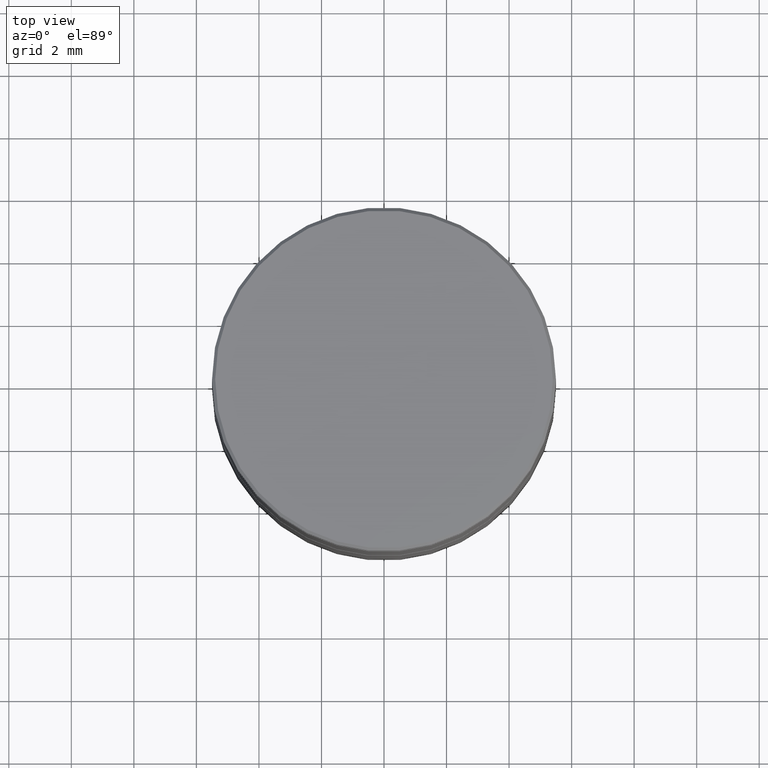
[diagram: clean part render]
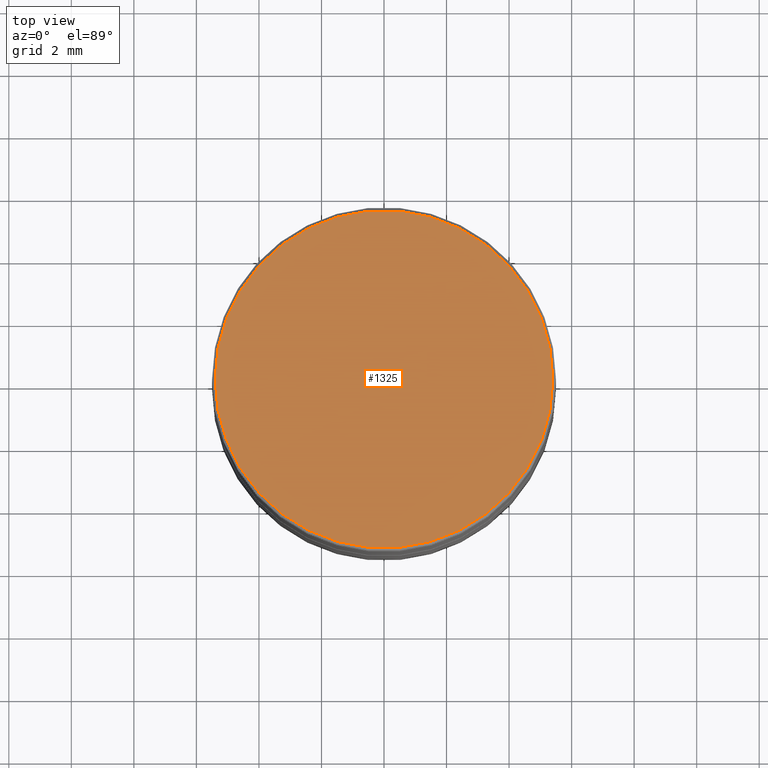
[diagram: same view with one face highlighted and labeled with its STEP entity id]
A machine part, top view. The second image highlights one B-rep face of the part: STEP entity #1325.
In plain terms, the highlighted planar face has unit normal (0, -0, 1).
Its self-contained STEP definition (entity closure, byte-faithful):
#36 = ORIENTED_EDGE ( 'NONE', *, *, #211, .T. ) ;
#39 = ORIENTED_EDGE ( 'NONE', *, *, #599, .T. ) ;
#154 = VERTEX_POINT ( 'NONE', #1014 ) ;
#196 = DIRECTION ( 'NONE',  ( 1.000000000000000000, 0.000000000000000000, 0.000000000000000000 ) ) ;
#211 = EDGE_CURVE ( 'NONE', #560, #154, #571, .T. ) ;
#229 = FACE_OUTER_BOUND ( 'NONE', #1161, .T. ) ;
#501 = AXIS2_PLACEMENT_3D ( 'NONE', #1159, #1264, #752 ) ;
#520 = DIRECTION ( 'NONE',  ( -0.000000000000000000, -0.000000000000000000, 1.000000000000000000 ) ) ;
#560 = VERTEX_POINT ( 'NONE', #1274 ) ;
#571 = CIRCLE ( 'NONE', #594, 5.400000000000005684 ) ;
#594 = AXIS2_PLACEMENT_3D ( 'NONE', #723, #1153, #196 ) ;
#599 = EDGE_CURVE ( 'NONE', #154, #560, #702, .T. ) ;
#702 = CIRCLE ( 'NONE', #948, 5.400000000000005684 ) ;
#723 = CARTESIAN_POINT ( 'NONE',  ( 0.000000000000000000, 0.000000000000000000, 0.000000000000000000 ) ) ;
#752 = DIRECTION ( 'NONE',  ( 1.000000000000000000, 0.000000000000000000, 0.000000000000000000 ) ) ;
#940 = CARTESIAN_POINT ( 'NONE',  ( 0.000000000000000000, 0.000000000000000000, 0.000000000000000000 ) ) ;
#948 = AXIS2_PLACEMENT_3D ( 'NONE', #940, #520, #1381 ) ;
#1014 = CARTESIAN_POINT ( 'NONE',  ( -5.400000000000005684, 0.000000000000000000, 0.000000000000000000 ) ) ;
#1070 = PLANE ( 'NONE',  #501 ) ;
#1153 = DIRECTION ( 'NONE',  ( -0.000000000000000000, -0.000000000000000000, 1.000000000000000000 ) ) ;
#1159 = CARTESIAN_POINT ( 'NONE',  ( 0.000000000000000000, 0.000000000000000000, 0.000000000000000000 ) ) ;
#1161 = EDGE_LOOP ( 'NONE', ( #39, #36 ) ) ;
#1264 = DIRECTION ( 'NONE',  ( 0.000000000000000000, -0.000000000000000000, 1.000000000000000000 ) ) ;
#1274 = CARTESIAN_POINT ( 'NONE',  ( 5.400000000000005684, 6.674325055353078196E-16, 0.000000000000000000 ) ) ;
#1325 = ADVANCED_FACE ( 'NONE', ( #229 ), #1070, .T. ) ;
#1381 = DIRECTION ( 'NONE',  ( 1.000000000000000000, 0.000000000000000000, 0.000000000000000000 ) ) ;